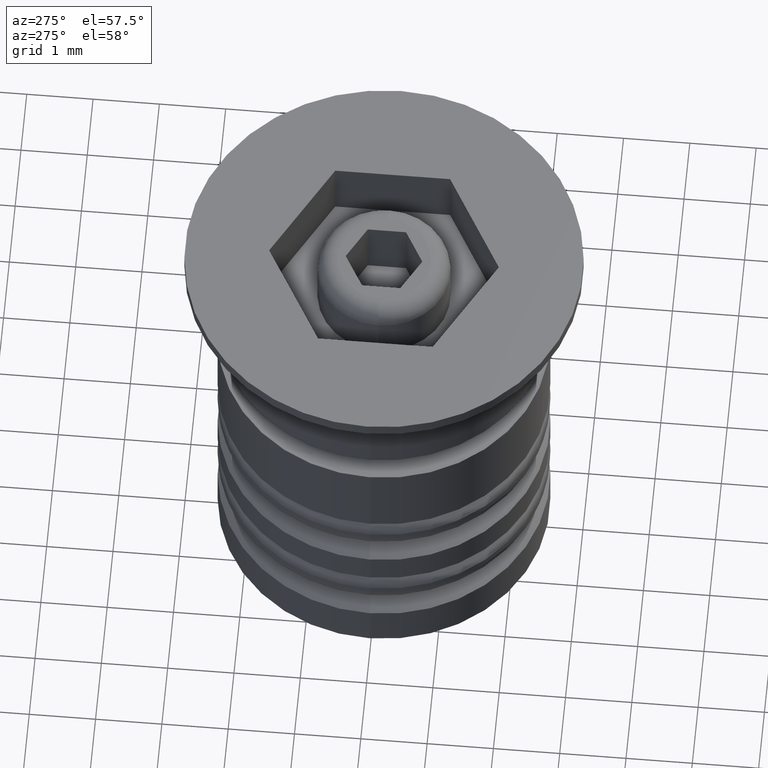
[diagram: clean part render]
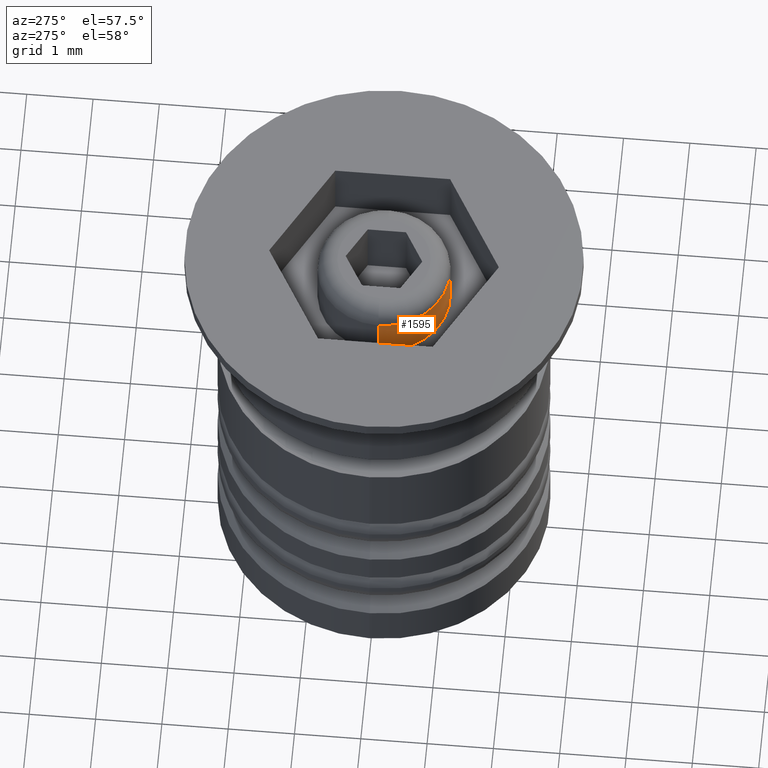
[diagram: same view with one face highlighted and labeled with its STEP entity id]
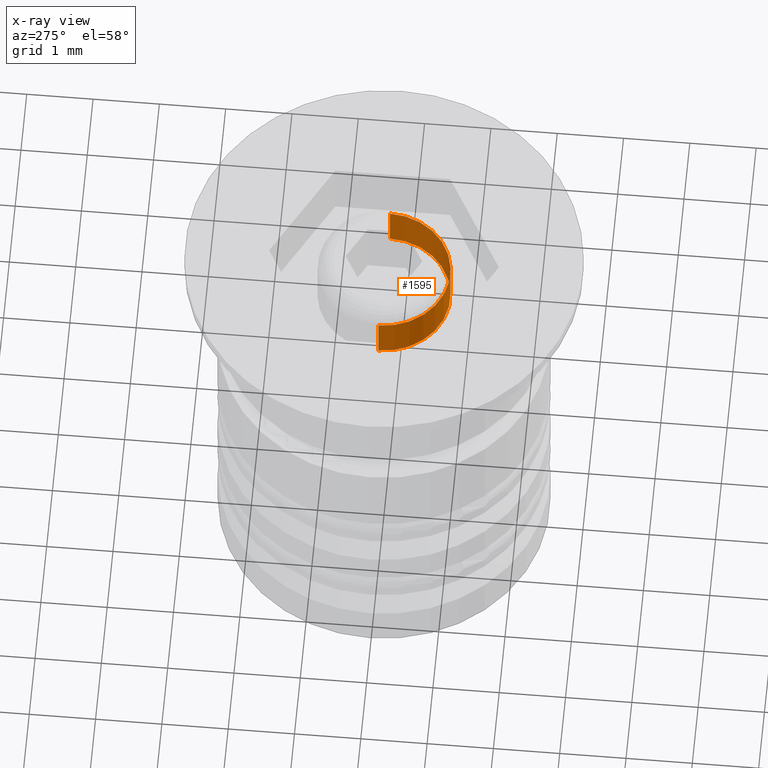
[diagram: x-ray of the same camera — body ghosted, the highlighted face saturated]
A machine part, auxiliary view. The second image highlights one B-rep face of the part: STEP entity #1595.
The next image is the same camera in x-ray: the body ghosted, the highlighted face saturated — about 0% of this face is hidden behind the body in this view.
In plain terms, the highlighted cylindrical surface (partial cylindrical patch) has radius 1 mm, axis along (-0, -0, -1).
Its self-contained STEP definition (entity closure, byte-faithful):
#14 = CARTESIAN_POINT ( 'NONE',  ( 1.000000000000000666, 1.224646799147353947E-16, 2.828427124746192067 ) ) ;
#33 = EDGE_CURVE ( 'NONE', #582, #461, #566, .T. ) ;
#42 = CYLINDRICAL_SURFACE ( 'NONE', #439, 1.000000000000000666 ) ;
#79 = CARTESIAN_POINT ( 'NONE',  ( 1.000000000000000666, 1.224646799147353947E-16, -0.3000000000000003775 ) ) ;
#102 = VECTOR ( 'NONE', #1223, 1000.000000000000000 ) ;
#103 = LINE ( 'NONE', #14, #456 ) ;
#169 = FACE_OUTER_BOUND ( 'NONE', #1017, .T. ) ;
#186 = DIRECTION ( 'NONE',  ( 1.000000000000000000, 0.000000000000000000, 0.000000000000000000 ) ) ;
#234 = DIRECTION ( 'NONE',  ( 0.000000000000000000, 0.000000000000000000, 1.000000000000000000 ) ) ;
#268 = ORIENTED_EDGE ( 'NONE', *, *, #1779, .T. ) ;
#301 = EDGE_CURVE ( 'NONE', #582, #1789, #103, .T. ) ;
#439 = AXIS2_PLACEMENT_3D ( 'NONE', #1176, #1185, #1156 ) ;
#456 = VECTOR ( 'NONE', #673, 1000.000000000000000 ) ;
#461 = VERTEX_POINT ( 'NONE', #472 ) ;
#472 = CARTESIAN_POINT ( 'NONE',  ( -1.000000000000000666, 0.000000000000000000, -0.3000000000000003775 ) ) ;
#549 = CARTESIAN_POINT ( 'NONE',  ( -1.000000000000000666, 0.000000000000000000, -1.000000000000000000 ) ) ;
#566 = CIRCLE ( 'NONE', #798, 1.000000000000000666 ) ;
#582 = VERTEX_POINT ( 'NONE', #79 ) ;
#621 = CARTESIAN_POINT ( 'NONE',  ( 0.000000000000000000, 0.000000000000000000, -0.3000000000000003775 ) ) ;
#652 = CARTESIAN_POINT ( 'NONE',  ( 0.000000000000000000, 0.000000000000000000, -1.000000000000000000 ) ) ;
#673 = DIRECTION ( 'NONE',  ( -0.000000000000000000, -0.000000000000000000, -1.000000000000000000 ) ) ;
#795 = DIRECTION ( 'NONE',  ( 1.000000000000000000, 0.000000000000000000, 0.000000000000000000 ) ) ;
#798 = AXIS2_PLACEMENT_3D ( 'NONE', #621, #1413, #186 ) ;
#809 = LINE ( 'NONE', #1119, #102 ) ;
#1017 = EDGE_LOOP ( 'NONE', ( #1039, #1229, #268, #1487 ) ) ;
#1039 = ORIENTED_EDGE ( 'NONE', *, *, #301, .F. ) ;
#1119 = CARTESIAN_POINT ( 'NONE',  ( -1.000000000000000666, 0.000000000000000000, 2.828427124746192067 ) ) ;
#1153 = VERTEX_POINT ( 'NONE', #549 ) ;
#1156 = DIRECTION ( 'NONE',  ( -1.000000000000000000, 0.000000000000000000, 0.000000000000000000 ) ) ;
#1176 = CARTESIAN_POINT ( 'NONE',  ( 0.000000000000000000, 0.000000000000000000, 2.828427124746192067 ) ) ;
#1185 = DIRECTION ( 'NONE',  ( -0.000000000000000000, -0.000000000000000000, -1.000000000000000000 ) ) ;
#1223 = DIRECTION ( 'NONE',  ( -0.000000000000000000, -0.000000000000000000, -1.000000000000000000 ) ) ;
#1229 = ORIENTED_EDGE ( 'NONE', *, *, #33, .T. ) ;
#1267 = EDGE_CURVE ( 'NONE', #1153, #1789, #1282, .T. ) ;
#1282 = CIRCLE ( 'NONE', #1517, 1.000000000000000666 ) ;
#1366 = CARTESIAN_POINT ( 'NONE',  ( 1.000000000000000666, 1.224646799147353947E-16, -1.000000000000000000 ) ) ;
#1413 = DIRECTION ( 'NONE',  ( 0.000000000000000000, 0.000000000000000000, -1.000000000000000000 ) ) ;
#1487 = ORIENTED_EDGE ( 'NONE', *, *, #1267, .T. ) ;
#1517 = AXIS2_PLACEMENT_3D ( 'NONE', #652, #234, #795 ) ;
#1595 = ADVANCED_FACE ( 'NONE', ( #169 ), #42, .T. ) ;
#1779 = EDGE_CURVE ( 'NONE', #461, #1153, #809, .T. ) ;
#1789 = VERTEX_POINT ( 'NONE', #1366 ) ;